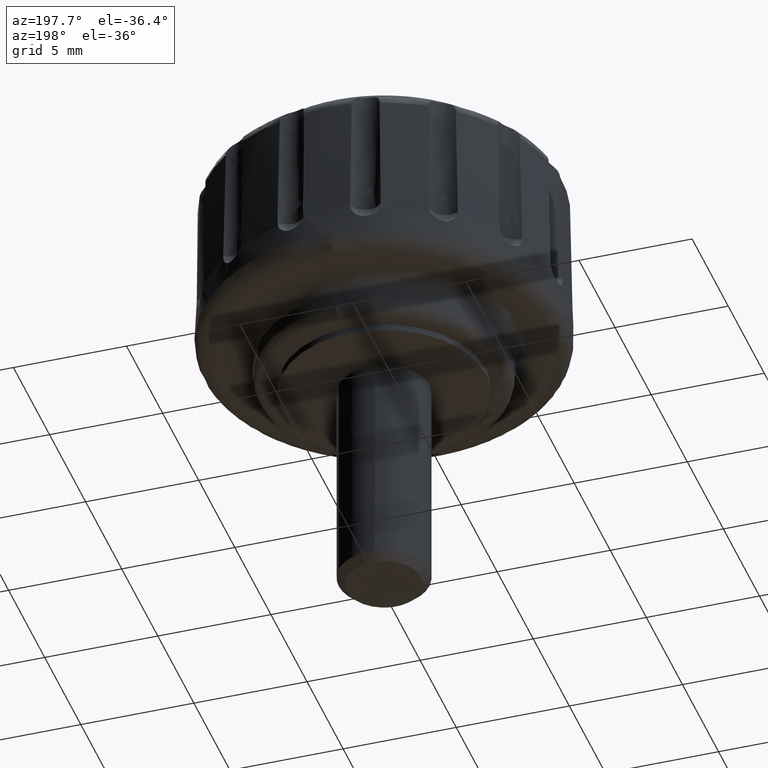
[diagram: clean part render]
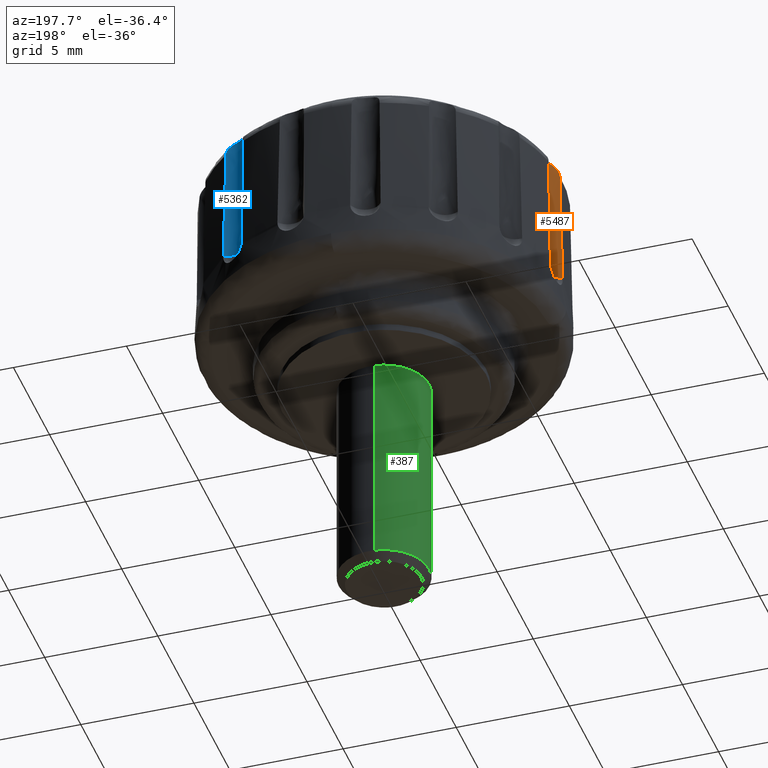
[diagram: same view with three faces highlighted in distinct colors, each labeled with its STEP entity id]
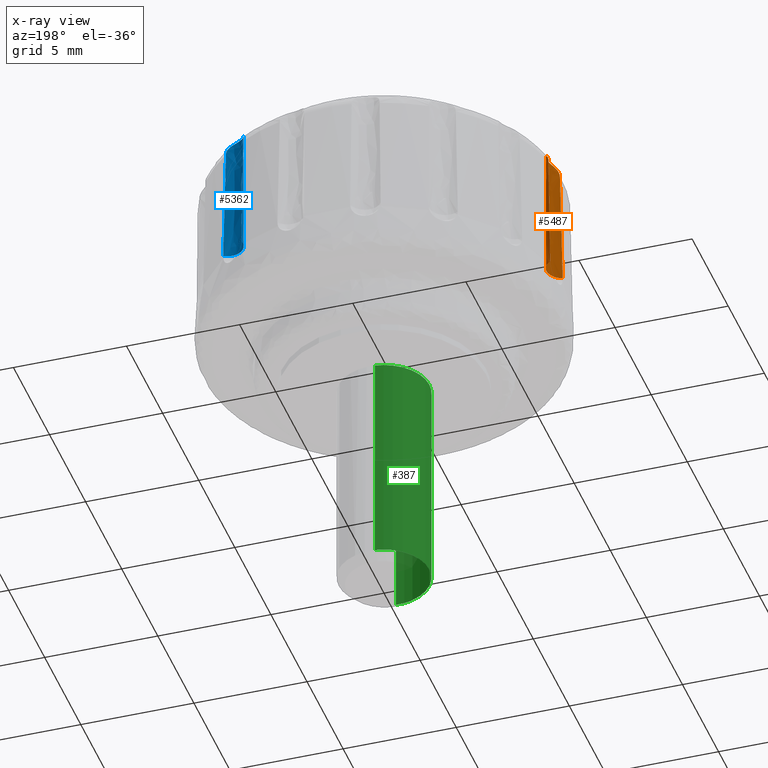
[diagram: x-ray of the same camera — body ghosted, the three highlighted faces saturated]
A machine part, auxiliary view with three faces highlighted in distinct colors.
The next image is the same camera in x-ray (body ghosted, the three faces saturated) — at least one of them is partly hidden behind the body in this view.
Their STEP definitions:

[orange] entity #5487 — the highlighted face is a freeform B-spline surface patch.
#1829=CARTESIAN_POINT('',(-7.845658922255160,0.229231240643653,9.412215999999800));
#1830=VERTEX_POINT('',#1829);
#1844=CARTESIAN_POINT('',(-7.955040337813040,0.186323491932988,4.099997999999935));
#1845=VERTEX_POINT('',#1844);
#1846=CARTESIAN_POINT('',(-7.845658922255160,0.229231240643647,9.412215999999800));
#1847=CARTESIAN_POINT('',(-7.882272450701684,0.211188816460830,7.641511708373069));
#1848=CARTESIAN_POINT('',(-7.918704367829575,0.197158921511917,5.870766568932547));
#1849=CARTESIAN_POINT('',(-7.955040337813046,0.186323491932979,4.099997999999935));
#1850=QUASI_UNIFORM_CURVE('',3,(#1846,#1847,#1848,#1849),.UNSPECIFIED.,.F.,.U.);
#1851=EDGE_CURVE('',#1830,#1845,#1850,.T.);
#1853=CARTESIAN_POINT('',(-7.819942452419331,1.471694010563588,4.099997999999900));
#1854=VERTEX_POINT('',#1853);
#1905=CARTESIAN_POINT('',(-7.721870978565580,1.406981178370932,9.412215961043639));
#1906=VERTEX_POINT('',#1905);
#1907=CARTESIAN_POINT('',(-7.819942452419331,1.471694010563588,4.099997999999900));
#1908=CARTESIAN_POINT('',(-7.786652878234233,1.453540338291432,5.870766683381367));
#1909=CARTESIAN_POINT('',(-7.753933628316949,1.432242064023509,7.641511502886163));
#1910=CARTESIAN_POINT('',(-7.721870978565580,1.406981178370932,9.412215961043639));
#1911=QUASI_UNIFORM_CURVE('',3,(#1907,#1908,#1909,#1910),.UNSPECIFIED.,.F.,.U.);
#1912=EDGE_CURVE('',#1854,#1906,#1911,.T.);
#4166=CARTESIAN_POINT('',(-7.845658922255160,0.229231240643653,9.412215999999800));
#4167=CARTESIAN_POINT('',(-7.844796525197992,0.229656215236607,9.453916721253478));
#4168=CARTESIAN_POINT('',(-7.839585962317250,0.232171722431400,9.494704833202194));
#4169=CARTESIAN_POINT('',(-7.825584205315471,0.239506600242645,9.554537304504340));
#4170=CARTESIAN_POINT('',(-7.819834819704726,0.242582895129963,9.574370130042947));
#4171=CARTESIAN_POINT('',(-7.806423803563334,0.250090940058683,9.612978597844537));
#4172=CARTESIAN_POINT('',(-7.791210230167543,0.258893523221209,9.650304877469464));
#4173=CARTESIAN_POINT('',(-7.772711199234596,0.270667077442716,9.685104555301901));
#4174=CARTESIAN_POINT('',(-7.752704051426973,0.284209059682979,9.718618972083318));
#4175=CARTESIAN_POINT('',(-7.741857201467549,0.291935183611672,9.734840476893186));
#4176=CARTESIAN_POINT('',(-7.708179948329858,0.317614716079974,9.780307952086476));
#4177=CARTESIAN_POINT('',(-7.684127434212202,0.338084893538942,9.806634205302339));
#4178=CARTESIAN_POINT('',(-7.647350133898646,0.374935672210499,9.840784181276852));
#4179=CARTESIAN_POINT('',(-7.635003733582837,0.388237896687497,9.851233063807090));
#4180=CARTESIAN_POINT('',(-7.611067111620412,0.416233900423313,9.869956063568875));
#4181=CARTESIAN_POINT('',(-7.599386708604531,0.431013764425611,9.878316308489115));
#4182=CARTESIAN_POINT('',(-7.565554678000424,0.477736266002973,9.900804938109523));
#4183=CARTESIAN_POINT('',(-7.544564928510301,0.512311484369728,9.912352961847651));
#4184=CARTESIAN_POINT('',(-7.517887066065728,0.566624284665765,9.925297023523577));
#4185=CARTESIAN_POINT('',(-7.509722990166147,0.585220295880316,9.928922032146858));
#4186=CARTESIAN_POINT('',(-7.494939392548222,0.623388134394109,9.935010304568081));
#4187=CARTESIAN_POINT('',(-7.488294623841164,0.643061584261284,9.937480643029650));
#4188=CARTESIAN_POINT('',(-7.471116059370200,0.702536074295153,9.943259063981911));
#4189=CARTESIAN_POINT('',(-7.463225316184552,0.742907931576609,9.945032285502837));
#4190=CARTESIAN_POINT('',(-7.456750667948109,0.804534544184980,9.945030959725873));
#4191=CARTESIAN_POINT('',(-7.455491380847898,0.825367167813552,9.944568639866331));
#4192=CARTESIAN_POINT('',(-7.454837370736064,0.866808777197708,9.942689594053826));
#4193=CARTESIAN_POINT('',(-7.455431449204430,0.887373109247048,9.941280670589185));
#4194=CARTESIAN_POINT('',(-7.459872517853049,0.948593780223295,9.935527252520359));
#4195=CARTESIAN_POINT('',(-7.466364928232044,0.988785652553656,9.929709340950954));
#4196=CARTESIAN_POINT('',(-7.486266128991270,1.067724751110270,9.912306373263597));
#4197=CARTESIAN_POINT('',(-7.499394562382635,1.105204606887166,9.900942589624775));
#4198=CARTESIAN_POINT('',(-7.522557997750817,1.157606951368047,9.878686167111148));
#4199=CARTESIAN_POINT('',(-7.530868906633462,1.174474667193754,9.870383158481383));
#4200=CARTESIAN_POINT('',(-7.548476491443220,1.206957744948547,9.851677396572235));
#4201=CARTESIAN_POINT('',(-7.557813088418043,1.222612503833753,9.841215007211428));
#4202=CARTESIAN_POINT('',(-7.585982999637599,1.266191795349367,9.807305138358251));
#4203=CARTESIAN_POINT('',(-7.605243250002559,1.291285594273466,9.781088387611742));
#4204=CARTESIAN_POINT('',(-7.632953210610181,1.323596787155776,9.735578581192421));
#4205=CARTESIAN_POINT('',(-7.641960765822534,1.333430243649391,9.719397350403460));
#4206=CARTESIAN_POINT('',(-7.658758561820044,1.350909630772365,9.685906184650195));
#4207=CARTESIAN_POINT('',(-7.666621688998037,1.358641513448174,9.668483377353564));
#4208=CARTESIAN_POINT('',(-7.688292479701485,1.379156408429854,9.614196895074398));
#4209=CARTESIAN_POINT('',(-7.700169715180971,1.389271889760794,9.575021713290328));
#4210=CARTESIAN_POINT('',(-7.716462201975929,1.402778951388941,9.495266307989159));
#4211=CARTESIAN_POINT('',(-7.721114823262762,1.406385429902863,9.453969800863998));
#4212=CARTESIAN_POINT('',(-7.721870978565580,1.406981178370932,9.412215961043639));
#4213=B_SPLINE_CURVE_WITH_KNOTS('',3,(#4166,#4167,#4168,#4169,#4170,#4171,#4172,#4173,#4174,#4175,#4176,#4177,#4178,#4179,#4180,#4181,#4182,#4183,#4184,#4185,#4186,#4187,#4188,#4189,#4190,#4191,#4192,#4193,#4194,#4195,#4196,#4197,#4198,#4199,#4200,#4201,#4202,#4203,#4204,#4205,#4206,#4207,#4208,#4209,#4210,#4211,#4212),.UNSPECIFIED.,.F.,.U.,(4,2,2,1,2,2,2,2,2,2,2,2,2,2,2,2,2,2,2,2,2,2,2,4),(0.000000139648876,0.062499999999998,0.093749999999997,0.124999999999997,0.156249999999997,0.187499999999997,0.249999999999999,0.281249999999999,0.312499999999999,0.374999999999998,0.406249999999998,0.437499999999998,0.499999999999997,0.531249999999996,0.562499999999996,0.624999999999994,0.687499999999993,0.718749999999994,0.749999999999994,0.812499999999993,0.843749999999993,0.874999999999994,0.937499999999997,1.0),.UNSPECIFIED.);
#4214=EDGE_CURVE('',#1830,#1906,#4213,.T.);
#5065=CARTESIAN_POINT('',(-7.955040337813040,0.186323491932987,4.099997999999940));
#5066=CARTESIAN_POINT('',(-7.507705221684397,0.319719357000108,4.099997999999940));
#5067=CARTESIAN_POINT('',(-7.458911231696359,0.783963160922012,4.099997999999940));
#5068=CARTESIAN_POINT('',(-7.410117241708321,1.248206964843916,4.099997999999940));
#5069=CARTESIAN_POINT('',(-7.819942452419331,1.471694010563588,4.099997999999900));
#5077=(BOUNDED_CURVE()B_SPLINE_CURVE(2,(#5065,#5066,#5067,#5068,#5069),.UNSPECIFIED.,.F.,.U.)B_SPLINE_CURVE_WITH_KNOTS((3,2,3),(0.0,0.500000000000000,1.0),.UNSPECIFIED.)CURVE()GEOMETRIC_REPRESENTATION_ITEM()RATIONAL_B_SPLINE_CURVE((1.0,0.831976603905543,1.0,0.831976603905543,1.0))REPRESENTATION_ITEM(''));
#5078=EDGE_CURVE('',#1845,#1854,#5077,.T.);
#5463=CARTESIAN_POINT('',(-7.977054066465192,0.180148600641188,10.091157237031100));
#5464=CARTESIAN_POINT('',(-7.977054066465192,0.180148600641188,3.950219019074120));
#5465=CARTESIAN_POINT('',(-7.503024427119540,0.304801291502734,10.091157237031096));
#5466=CARTESIAN_POINT('',(-7.503024427119540,0.304801291502734,3.950219019074120));
#5467=CARTESIAN_POINT('',(-7.458031955693626,0.792877176824047,10.091157237031100));
#5468=CARTESIAN_POINT('',(-7.458031955693626,0.792877176824047,3.950219019074120));
#5469=CARTESIAN_POINT('',(-7.413039484267713,1.280953062145359,10.091157237031096));
#5470=CARTESIAN_POINT('',(-7.413039484267713,1.280953062145359,3.950219019074120));
#5471=CARTESIAN_POINT('',(-7.856292460562032,1.490163939786608,10.091157237031100));
#5472=CARTESIAN_POINT('',(-7.856292460562032,1.490163939786608,3.950219019074120));
#5480=(BOUNDED_SURFACE()B_SPLINE_SURFACE(1,2,((#5463,#5465,#5467,#5469,#5471),(#5464,#5466,#5468,#5470,#5472)),.UNSPECIFIED.,.F.,.F.,.U.)B_SPLINE_SURFACE_WITH_KNOTS((2,2),(3,2,3),(0.0,6.140938217956976),(0.0,1.0,2.0),.UNSPECIFIED.)GEOMETRIC_REPRESENTATION_ITEM()RATIONAL_B_SPLINE_SURFACE(((1.0,0.819152044288992,1.0,0.819152044288992,1.0),(1.0,0.819152044288992,1.0,0.819152044288992,1.0)))REPRESENTATION_ITEM('')SURFACE());
#5481=ORIENTED_EDGE('',*,*,#4214,.T.);
#5482=ORIENTED_EDGE('',*,*,#1912,.F.);
#5483=ORIENTED_EDGE('',*,*,#5078,.F.);
#5484=ORIENTED_EDGE('',*,*,#1851,.F.);
#5485=EDGE_LOOP('',(#5481,#5482,#5483,#5484));
#5486=FACE_OUTER_BOUND('',#5485,.T.);
#5487=ADVANCED_FACE('',(#5486),#5480,.F.);

[blue] entity #5362 — the highlighted face is a freeform B-spline surface patch.
#2256=CARTESIAN_POINT('',(4.121349538866006,6.679924315779180,9.412215999999800));
#2257=VERTEX_POINT('',#2256);
#2271=CARTESIAN_POINT('',(4.138881046242310,6.796105274709540,4.099997999999935));
#2272=VERTEX_POINT('',#2271);
#2273=CARTESIAN_POINT('',(4.121349538866003,6.679924315779183,9.412215999999800));
#2274=CARTESIAN_POINT('',(4.124031105401090,6.720653773627465,7.641511708373069));
#2275=CARTESIAN_POINT('',(4.130096818526850,6.759219686843247,5.870766568932546));
#2276=CARTESIAN_POINT('',(4.138881046242308,6.796105274709552,4.099997999999935));
#2277=QUASI_UNIFORM_CURVE('',3,(#2273,#2274,#2275,#2276),.UNSPECIFIED.,.F.,.U.);
#2278=EDGE_CURVE('',#2257,#2272,#2277,.T.);
#2280=CARTESIAN_POINT('',(5.184495625955130,6.036421814645730,4.099997999999900));
#2281=VERTEX_POINT('',#2280);
#2329=CARTESIAN_POINT('',(5.079416932398580,5.983845842998131,9.412215961043639));
#2330=VERTEX_POINT('',#2329);
#2331=CARTESIAN_POINT('',(5.184495625955130,6.036421814645730,4.099997999999900));
#2332=CARTESIAN_POINT('',(5.152129297502919,6.016669033856348,5.870766683381367));
#2333=CARTESIAN_POINT('',(5.117324825971489,5.998982469369170,7.641511502886162));
#2334=CARTESIAN_POINT('',(5.079416932398580,5.983845842998131,9.412215961043639));
#2335=QUASI_UNIFORM_CURVE('',3,(#2331,#2332,#2333,#2334),.UNSPECIFIED.,.F.,.U.);
#2336=EDGE_CURVE('',#2281,#2330,#2335,.T.);
#3842=CARTESIAN_POINT('',(4.121349538866006,6.679924315779180,9.412215999999800));
#3843=CARTESIAN_POINT('',(4.121286379130882,6.678964970723041,9.453916721253467));
#3844=CARTESIAN_POINT('',(4.120859590824605,6.673194737302906,9.494704833202192));
#3845=CARTESIAN_POINT('',(4.120210902841909,6.657401421136130,9.554537304504335));
#3846=CARTESIAN_POINT('',(4.120000359558486,6.650884159697414,9.574370130042944));
#3847=CARTESIAN_POINT('',(4.119797009128817,6.635515856564045,9.612978597844533));
#3848=CARTESIAN_POINT('',(4.119813483068595,6.617939223939687,9.650304877469454));
#3849=CARTESIAN_POINT('',(4.120760164650779,6.596031816095608,9.685104555301901));
#3850=CARTESIAN_POINT('',(4.122484291384632,6.571934126716802,9.718618972083313));
#3851=CARTESIAN_POINT('',(4.123751885999957,6.558677417136561,9.734840476893178));
#3852=CARTESIAN_POINT('',(4.129152386905971,6.516672294155493,9.780307952086476));
#3853=CARTESIAN_POINT('',(4.134853823546584,6.485607117175233,9.806634205302336));
#3854=CARTESIAN_POINT('',(4.148378883868614,6.435331651485307,9.840784181276844));
#3855=CARTESIAN_POINT('',(4.153725748034632,6.417988242928028,9.851233063807090));
#3856=CARTESIAN_POINT('',(4.166002687493077,6.383260518359876,9.869956063568868));
#3857=CARTESIAN_POINT('',(4.172962223675609,6.365755060620527,9.878316308489110));
#3858=CARTESIAN_POINT('',(4.196509081667909,6.313094411867078,9.900804938109518));
#3859=CARTESIAN_POINT('',(4.215957224369850,6.277629146406186,9.912352961847640));
#3860=CARTESIAN_POINT('',(4.249654557954603,6.227369039662499,9.925297023523564));
#3861=CARTESIAN_POINT('',(4.261677138125675,6.211000736927763,9.928922032146847));
#3862=CARTESIAN_POINT('',(4.287339657077202,6.179113846574415,9.935010304568079));
#3863=CARTESIAN_POINT('',(4.301054980088725,6.163522583138247,9.937480643029645));
#3864=CARTESIAN_POINT('',(4.343972117099699,6.118908264888913,9.943259063981905));
#3865=CARTESIAN_POINT('',(4.374989799510573,6.091888752194673,9.945032285502830));
#3866=CARTESIAN_POINT('',(4.425122687460386,6.055468236037159,9.945030959725870));
#3867=CARTESIAN_POINT('',(4.442534625200103,6.043961349603435,9.944568639866327));
#3868=CARTESIAN_POINT('',(4.478097106644573,6.022674155540172,9.942689594053819));
#3869=CARTESIAN_POINT('',(4.496203379845345,6.012906476560951,9.941280670589178));
#3870=CARTESIAN_POINT('',(4.551442570471814,5.986142219342483,9.935527252520357));
#3871=CARTESIAN_POINT('',(4.589495958125066,5.971668875497309,9.929709340950955));
#3872=CARTESIAN_POINT('',(4.667809823206550,5.949434271642303,9.912306373263597));
#3873=CARTESIAN_POINT('',(4.706832547135197,5.942063900582668,9.900942589624773));
#3874=CARTESIAN_POINT('',(4.763796026357597,5.935922851809994,9.878686167111143));
#3875=CARTESIAN_POINT('',(4.782559351207796,5.934686452118047,9.870383158481378));
#3876=CARTESIAN_POINT('',(4.819494314141431,5.933693528985190,9.851677396572230));
#3877=CARTESIAN_POINT('',(4.837720031513548,5.933951879707681,9.841215007211424));
#3878=CARTESIAN_POINT('',(4.889545760654779,5.936558092688363,9.807305138358249));
#3879=CARTESIAN_POINT('',(4.920907753182986,5.940691059325616,9.781088387611737));
#3880=CARTESIAN_POINT('',(4.962745047349457,5.948532992708526,9.735578581192415));
#3881=CARTESIAN_POINT('',(4.975764848086111,5.951417036101606,9.719397350403460));
#3882=CARTESIAN_POINT('',(4.999301339375945,5.957224660601553,9.685906184650190));
#3883=CARTESIAN_POINT('',(5.009928909781274,5.960168387152978,9.668483377353560));
#3884=CARTESIAN_POINT('',(5.038530725343104,5.968678394931419,9.614196895074395));
#3885=CARTESIAN_POINT('',(5.053229606886950,5.973906641917913,9.575021713290328));
#3886=CARTESIAN_POINT('',(5.073073308784884,5.981262818559097,9.495266307989162));
#3887=CARTESIAN_POINT('',(5.078522921439557,5.983488867530721,9.453969800863998));
#3888=CARTESIAN_POINT('',(5.079416932398580,5.983845842998131,9.412215961043639));
#3889=B_SPLINE_CURVE_WITH_KNOTS('',3,(#3842,#3843,#3844,#3845,#3846,#3847,#3848,#3849,#3850,#3851,#3852,#3853,#3854,#3855,#3856,#3857,#3858,#3859,#3860,#3861,#3862,#3863,#3864,#3865,#3866,#3867,#3868,#3869,#3870,#3871,#3872,#3873,#3874,#3875,#3876,#3877,#3878,#3879,#3880,#3881,#3882,#3883,#3884,#3885,#3886,#3887,#3888),.UNSPECIFIED.,.F.,.U.,(4,2,2,1,2,2,2,2,2,2,2,2,2,2,2,2,2,2,2,2,2,2,2,4),(0.000000139648877,0.062500000000002,0.093750000000002,0.125000000000001,0.156250000000001,0.187500000000001,0.249999999999997,0.281249999999994,0.312499999999991,0.374999999999988,0.406249999999986,0.437499999999985,0.499999999999984,0.531249999999984,0.562499999999984,0.624999999999986,0.687499999999988,0.718749999999988,0.749999999999989,0.812499999999989,0.843749999999990,0.874999999999991,0.937499999999996,1.0),.UNSPECIFIED.);
#3890=EDGE_CURVE('',#2257,#2330,#3889,.T.);
#4850=CARTESIAN_POINT('',(4.138881046242311,6.796105274709540,4.099997999999940));
#4851=CARTESIAN_POINT('',(4.030737696085925,6.342003767603719,4.099997999999940));
#4852=CARTESIAN_POINT('',(4.408387628837790,6.067625030761127,4.099997999999940));
#4853=CARTESIAN_POINT('',(4.786037561589654,5.793246293918533,4.099997999999940));
#4854=CARTESIAN_POINT('',(5.184495625955130,6.036421814645730,4.099997999999900));
#4862=(BOUNDED_CURVE()B_SPLINE_CURVE(2,(#4850,#4851,#4852,#4853,#4854),.UNSPECIFIED.,.F.,.U.)B_SPLINE_CURVE_WITH_KNOTS((3,2,3),(0.0,0.500000000000000,1.0),.UNSPECIFIED.)CURVE()GEOMETRIC_REPRESENTATION_ITEM()RATIONAL_B_SPLINE_CURVE((1.0,0.831976603905547,1.0,0.831976603905547,1.0))REPRESENTATION_ITEM(''));
#4863=EDGE_CURVE('',#2272,#2281,#4862,.T.);
#5338=CARTESIAN_POINT('',(4.144540297844083,6.818257168600221,10.091157237031091));
#5339=CARTESIAN_POINT('',(4.144540297844083,6.818257168600221,3.950219019074120));
#5340=CARTESIAN_POINT('',(4.015477875107450,6.345409113349338,10.091157237031094));
#5341=CARTESIAN_POINT('',(4.015477875107450,6.345409113349338,3.950219019074120));
#5342=CARTESIAN_POINT('',(4.415667755057331,6.062406547454801,10.091157237031091));
#5343=CARTESIAN_POINT('',(4.415667755057331,6.062406547454801,3.950219019074120));
#5344=CARTESIAN_POINT('',(4.815857635007214,5.779403981560265,10.091157237031094));
#5345=CARTESIAN_POINT('',(4.815857635007214,5.779403981560265,3.950219019074120));
#5346=CARTESIAN_POINT('',(5.218666057939728,6.058666880513585,10.091157237031091));
#5347=CARTESIAN_POINT('',(5.218666057939728,6.058666880513585,3.950219019074120));
#5355=(BOUNDED_SURFACE()B_SPLINE_SURFACE(1,2,((#5338,#5340,#5342,#5344,#5346),(#5339,#5341,#5343,#5345,#5347)),.UNSPECIFIED.,.F.,.F.,.U.)B_SPLINE_SURFACE_WITH_KNOTS((2,2),(3,2,3),(0.0,6.140938217956975),(0.0,1.0,2.0),.UNSPECIFIED.)GEOMETRIC_REPRESENTATION_ITEM()RATIONAL_B_SPLINE_SURFACE(((1.0,0.819152044288992,1.0,0.819152044288992,1.0),(1.0,0.819152044288992,1.0,0.819152044288992,1.0)))REPRESENTATION_ITEM('')SURFACE());
#5356=ORIENTED_EDGE('',*,*,#3890,.T.);
#5357=ORIENTED_EDGE('',*,*,#2336,.F.);
#5358=ORIENTED_EDGE('',*,*,#4863,.F.);
#5359=ORIENTED_EDGE('',*,*,#2278,.F.);
#5360=EDGE_LOOP('',(#5356,#5357,#5358,#5359));
#5361=FACE_OUTER_BOUND('',#5360,.T.);
#5362=ADVANCED_FACE('',(#5361),#5355,.F.);

[green] entity #387 — the highlighted face is a freeform B-spline surface patch.
#66=CARTESIAN_POINT('',(-0.236068484251974,1.986019050951671,-9.653779978417099));
#67=VERTEX_POINT('',#66);
#133=CARTESIAN_POINT('',(0.122097079080959,-1.996269596843046,-9.653779978417100));
#134=VERTEX_POINT('',#133);
#148=CARTESIAN_POINT('',(-2.0,0.0,-9.653779978417100));
#149=VERTEX_POINT('',#148);
#150=CARTESIAN_POINT('',(0.122097079080959,-1.996269596843046,-9.653779978417100));
#151=CARTESIAN_POINT('',(0.061105526608454,-2.0,-9.653779978417100));
#152=CARTESIAN_POINT('',(0.0,-2.0,-9.653779978417100));
#153=CARTESIAN_POINT('',(-2.000000000000000,-2.000000000000000,-9.653779978417100));
#154=CARTESIAN_POINT('',(-2.0,0.0,-9.653779978417100));
#162=(BOUNDED_CURVE()B_SPLINE_CURVE(2,(#150,#151,#152,#153,#154),.UNSPECIFIED.,.F.,.U.)B_SPLINE_CURVE_WITH_KNOTS((3,2,3),(0.739332962240024,0.750000000000000,1.0),.UNSPECIFIED.)CURVE()GEOMETRIC_REPRESENTATION_ITEM()RATIONAL_B_SPLINE_CURVE((0.976072041669036,0.987502787901104,1.0,0.707106781186548,1.0))REPRESENTATION_ITEM(''));
#163=EDGE_CURVE('',#134,#149,#162,.T.);
#165=CARTESIAN_POINT('',(-2.0,0.0,-9.653779978417100));
#166=CARTESIAN_POINT('',(-2.000000000000000,1.776349024991898,-9.653779978417100));
#167=CARTESIAN_POINT('',(-0.236068484251974,1.986019050951671,-9.653779978417099));
#175=(BOUNDED_CURVE()B_SPLINE_CURVE(2,(#165,#166,#167),.UNSPECIFIED.,.F.,.U.)B_SPLINE_CURVE_WITH_KNOTS((3,3),(0.0,0.229562470973224),.UNSPECIFIED.)CURVE()GEOMETRIC_REPRESENTATION_ITEM()RATIONAL_B_SPLINE_CURVE((1.0,0.731050835831531,0.956026749204637))REPRESENTATION_ITEM(''));
#176=EDGE_CURVE('',#149,#67,#175,.T.);
#283=CARTESIAN_POINT('',(-0.236068484251974,1.986019050951671,3.407314E-016));
#284=VERTEX_POINT('',#283);
#285=CARTESIAN_POINT('',(-0.236068484251974,1.986019050951671,3.407314E-016));
#286=CARTESIAN_POINT('',(-0.236068484251974,1.986019050951671,-9.653779978417099));
#287=QUASI_UNIFORM_CURVE('',1,(#285,#286),.UNSPECIFIED.,.F.,.U.);
#288=EDGE_CURVE('',#284,#67,#287,.T.);
#307=CARTESIAN_POINT('',(0.122097079080959,-1.996269596843046,3.330669E-016));
#308=VERTEX_POINT('',#307);
#322=CARTESIAN_POINT('',(0.122097079080959,-1.996269596843046,3.330669E-016));
#323=CARTESIAN_POINT('',(0.122097079080959,-1.996269596843046,-9.653779978417100));
#324=QUASI_UNIFORM_CURVE('',1,(#322,#323),.UNSPECIFIED.,.F.,.U.);
#325=EDGE_CURVE('',#308,#134,#324,.T.);
#333=CARTESIAN_POINT('',(0.122097079069714,-1.996269596843733,0.241344499460428));
#334=CARTESIAN_POINT('',(-1.874172517774020,-2.118366675913447,0.241344499460428));
#335=CARTESIAN_POINT('',(-1.996269596843733,-0.122097079069714,0.241344499460428));
#336=CARTESIAN_POINT('',(-2.111572393465055,1.763086981679002,0.241344499460428));
#337=CARTESIAN_POINT('',(-0.236068469313517,1.986019052727332,0.241344499460428));
#338=CARTESIAN_POINT('',(0.122097079069714,-1.996269596843733,-9.901158090364040));
#339=CARTESIAN_POINT('',(-1.874172517774020,-2.118366675913447,-9.901158090364040));
#340=CARTESIAN_POINT('',(-1.996269596843733,-0.122097079069714,-9.901158090364040));
#341=CARTESIAN_POINT('',(-2.111572393465055,1.763086981679002,-9.901158090364040));
#342=CARTESIAN_POINT('',(-0.236068469313517,1.986019052727332,-9.901158090364042));
#350=(BOUNDED_SURFACE()B_SPLINE_SURFACE(2,1,((#333,#338),(#334,#339),(#335,#340),(#336,#341),(#337,#342)),.UNSPECIFIED.,.F.,.F.,.U.)B_SPLINE_SURFACE_WITH_KNOTS((3,2,3),(2,2),(0.0,3.313708498984759,6.494868658010128),(0.0,10.142502589824471),.UNSPECIFIED.)GEOMETRIC_REPRESENTATION_ITEM()RATIONAL_B_SPLINE_SURFACE(((1.0,1.0),(0.707106781186548,0.707106781186548),(1.0,1.0),(0.718822509939086,0.718822509939086),(0.977505800795127,0.977505800795127)))REPRESENTATION_ITEM('')SURFACE());
#351=ORIENTED_EDGE('',*,*,#176,.F.);
#352=ORIENTED_EDGE('',*,*,#163,.F.);
#353=ORIENTED_EDGE('',*,*,#325,.F.);
#354=CARTESIAN_POINT('',(-2.0,0.0,0.0));
#355=VERTEX_POINT('',#354);
#356=CARTESIAN_POINT('',(0.122097079080959,-1.996269596843046,3.330669E-016));
#357=CARTESIAN_POINT('',(0.061105526608454,-2.0,0.0));
#358=CARTESIAN_POINT('',(0.0,-2.0,0.0));
#359=CARTESIAN_POINT('',(-2.000000000000000,-2.000000000000000,0.0));
#360=CARTESIAN_POINT('',(-2.0,0.0,0.0));
#368=(BOUNDED_CURVE()B_SPLINE_CURVE(2,(#356,#357,#358,#359,#360),.UNSPECIFIED.,.F.,.U.)B_SPLINE_CURVE_WITH_KNOTS((3,2,3),(0.739332962240024,0.750000000000000,1.0),.UNSPECIFIED.)CURVE()GEOMETRIC_REPRESENTATION_ITEM()RATIONAL_B_SPLINE_CURVE((0.976072041669036,0.987502787901104,1.0,0.707106781186548,1.0))REPRESENTATION_ITEM(''));
#369=EDGE_CURVE('',#308,#355,#368,.T.);
#370=ORIENTED_EDGE('',*,*,#369,.T.);
#371=CARTESIAN_POINT('',(-2.0,0.0,0.0));
#372=CARTESIAN_POINT('',(-2.000000000000000,1.776349024991898,0.0));
#373=CARTESIAN_POINT('',(-0.236068484251974,1.986019050951671,3.407314E-016));
#381=(BOUNDED_CURVE()B_SPLINE_CURVE(2,(#371,#372,#373),.UNSPECIFIED.,.F.,.U.)B_SPLINE_CURVE_WITH_KNOTS((3,3),(0.0,0.229562470973224),.UNSPECIFIED.)CURVE()GEOMETRIC_REPRESENTATION_ITEM()RATIONAL_B_SPLINE_CURVE((1.0,0.731050835831531,0.956026749204637))REPRESENTATION_ITEM(''));
#382=EDGE_CURVE('',#355,#284,#381,.T.);
#383=ORIENTED_EDGE('',*,*,#382,.T.);
#384=ORIENTED_EDGE('',*,*,#288,.T.);
#385=EDGE_LOOP('',(#351,#352,#353,#370,#383,#384));
#386=FACE_OUTER_BOUND('',#385,.T.);
#387=ADVANCED_FACE('',(#386),#350,.T.);